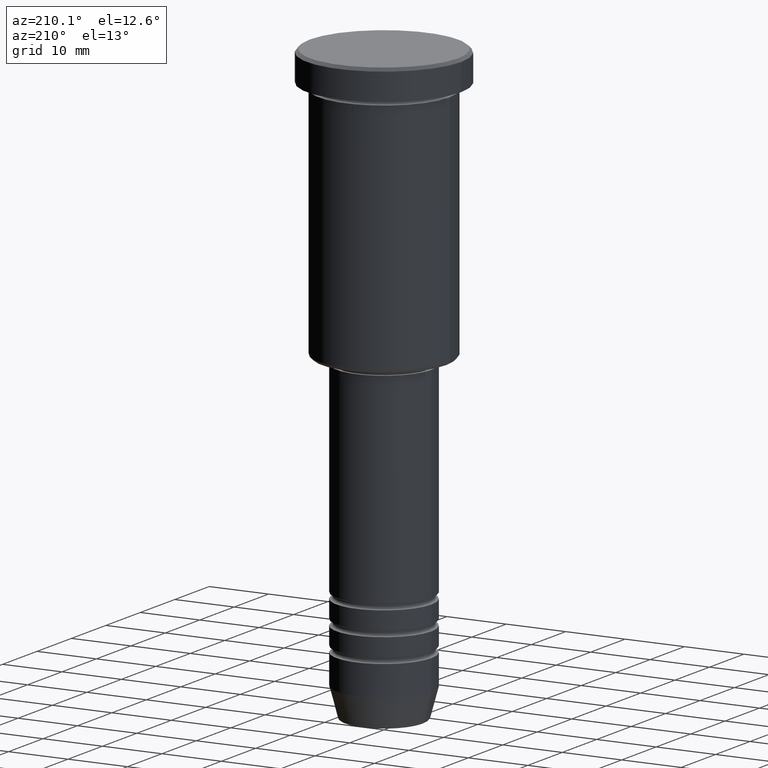
[diagram: clean part render]
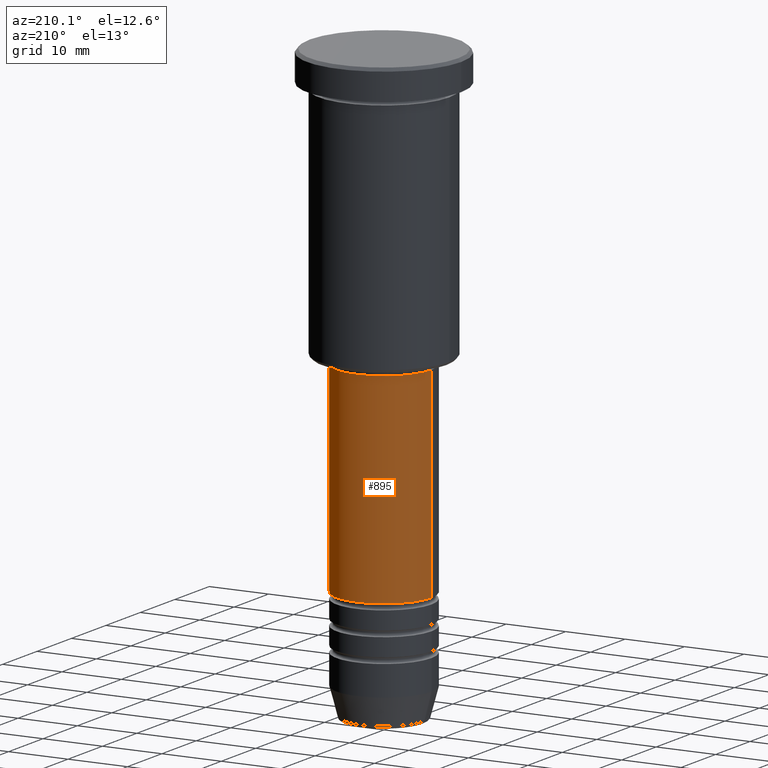
[diagram: same view with one face highlighted and labeled with its STEP entity id]
A machine part, auxiliary view. The second image highlights one B-rep face of the part: STEP entity #895.
In plain terms, the highlighted cylindrical surface (partial cylindrical patch) has radius 8 mm, axis along (-0, -0, 1).
Its self-contained STEP definition (entity closure, byte-faithful):
#6 = CARTESIAN_POINT ( 'NONE',  ( 8.000000000000000000, 0.000000000000000000, -47.00000000000000000 ) ) ;
#38 = DIRECTION ( 'NONE',  ( -0.000000000000000000, -0.000000000000000000, 1.000000000000000000 ) ) ;
#71 = VECTOR ( 'NONE', #900, 1000.000000000000000 ) ;
#130 = EDGE_CURVE ( 'NONE', #372, #738, #959, .T. ) ;
#140 = CARTESIAN_POINT ( 'NONE',  ( -8.000000000000000000, 9.797174393178825657E-16, -47.00000000000000000 ) ) ;
#226 = AXIS2_PLACEMENT_3D ( 'NONE', #867, #692, #801 ) ;
#256 = CARTESIAN_POINT ( 'NONE',  ( 8.000000000000000000, 0.000000000000000000, -80.99999999999998579 ) ) ;
#296 = VECTOR ( 'NONE', #711, 1000.000000000000000 ) ;
#372 = VERTEX_POINT ( 'NONE', #256 ) ;
#435 = DIRECTION ( 'NONE',  ( 1.000000000000000000, 0.000000000000000000, 0.000000000000000000 ) ) ;
#464 = VERTEX_POINT ( 'NONE', #140 ) ;
#489 = EDGE_CURVE ( 'NONE', #713, #464, #1156, .T. ) ;
#522 = AXIS2_PLACEMENT_3D ( 'NONE', #932, #38, #1124 ) ;
#536 = LINE ( 'NONE', #1010, #71 ) ;
#562 = ORIENTED_EDGE ( 'NONE', *, *, #1144, .T. ) ;
#570 = FACE_OUTER_BOUND ( 'NONE', #727, .T. ) ;
#576 = EDGE_CURVE ( 'NONE', #372, #713, #872, .T. ) ;
#692 = DIRECTION ( 'NONE',  ( -0.000000000000000000, -0.000000000000000000, 1.000000000000000000 ) ) ;
#708 = CARTESIAN_POINT ( 'NONE',  ( 0.000000000000000000, 0.000000000000000000, -80.99999999999998579 ) ) ;
#711 = DIRECTION ( 'NONE',  ( -0.000000000000000000, -0.000000000000000000, 1.000000000000000000 ) ) ;
#713 = VERTEX_POINT ( 'NONE', #6 ) ;
#721 = ORIENTED_EDGE ( 'NONE', *, *, #576, .F. ) ;
#727 = EDGE_LOOP ( 'NONE', ( #862, #562, #839, #721 ) ) ;
#738 = VERTEX_POINT ( 'NONE', #821 ) ;
#799 = DIRECTION ( 'NONE',  ( -0.000000000000000000, -0.000000000000000000, 1.000000000000000000 ) ) ;
#801 = DIRECTION ( 'NONE',  ( 1.000000000000000000, 0.000000000000000000, 0.000000000000000000 ) ) ;
#821 = CARTESIAN_POINT ( 'NONE',  ( -8.000000000000000000, 9.797174393178825657E-16, -80.99999999999998579 ) ) ;
#839 = ORIENTED_EDGE ( 'NONE', *, *, #489, .F. ) ;
#862 = ORIENTED_EDGE ( 'NONE', *, *, #130, .T. ) ;
#867 = CARTESIAN_POINT ( 'NONE',  ( 0.000000000000000000, 0.000000000000000000, -47.00000000000000000 ) ) ;
#872 = LINE ( 'NONE', #972, #296 ) ;
#881 = AXIS2_PLACEMENT_3D ( 'NONE', #708, #799, #435 ) ;
#895 = ADVANCED_FACE ( 'NONE', ( #570 ), #938, .T. ) ;
#900 = DIRECTION ( 'NONE',  ( -0.000000000000000000, -0.000000000000000000, 1.000000000000000000 ) ) ;
#932 = CARTESIAN_POINT ( 'NONE',  ( 0.000000000000000000, 0.000000000000000000, 0.000000000000000000 ) ) ;
#938 = CYLINDRICAL_SURFACE ( 'NONE', #522, 8.000000000000000000 ) ;
#959 = CIRCLE ( 'NONE', #881, 8.000000000000000000 ) ;
#972 = CARTESIAN_POINT ( 'NONE',  ( 8.000000000000000000, 0.000000000000000000, 0.000000000000000000 ) ) ;
#1010 = CARTESIAN_POINT ( 'NONE',  ( -8.000000000000000000, 9.797174393178825657E-16, 0.000000000000000000 ) ) ;
#1124 = DIRECTION ( 'NONE',  ( 1.000000000000000000, 0.000000000000000000, 0.000000000000000000 ) ) ;
#1144 = EDGE_CURVE ( 'NONE', #738, #464, #536, .T. ) ;
#1156 = CIRCLE ( 'NONE', #226, 8.000000000000000000 ) ;